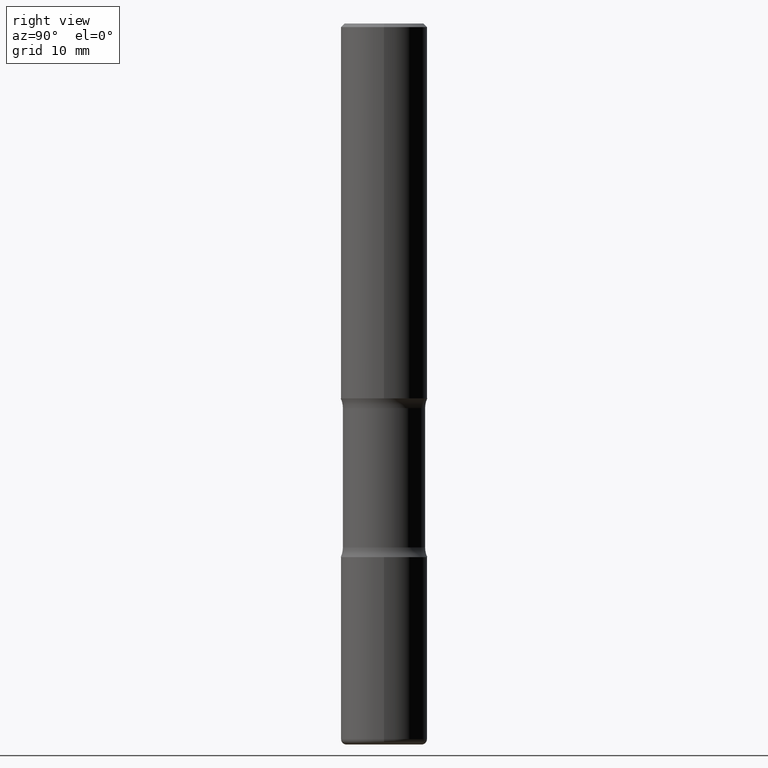
[diagram: clean part render]
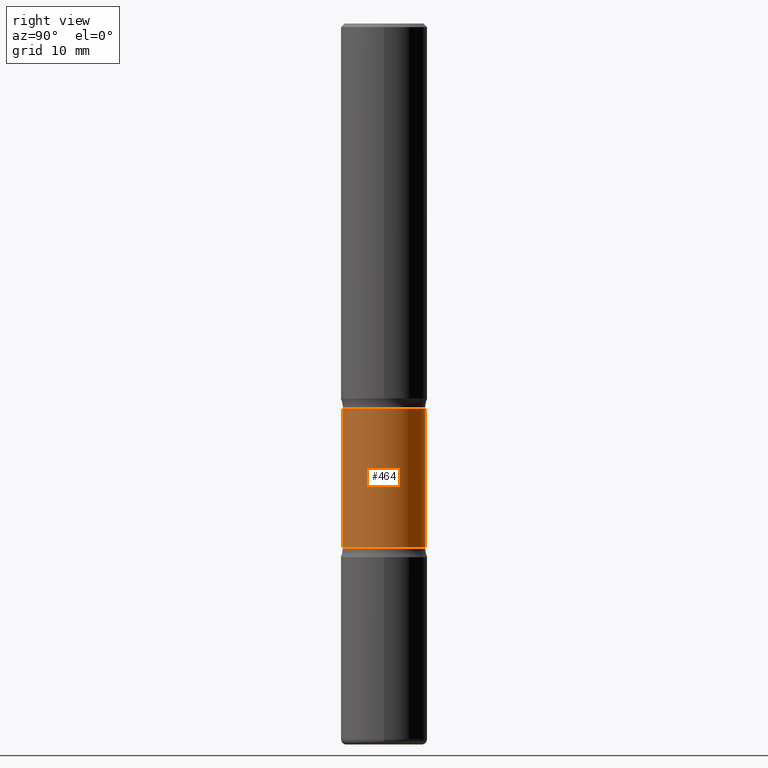
[diagram: same view with one face highlighted and labeled with its STEP entity id]
A machine part, right view. The second image highlights one B-rep face of the part: STEP entity #464.
In plain terms, the highlighted cylindrical surface (partial cylindrical patch) has radius 5.6998 mm, axis along (0, -0, -1).
Its self-contained STEP definition (entity closure, byte-faithful):
#3 = ORIENTED_EDGE ( 'NONE', *, *, #417, .T. ) ;
#9 = EDGE_CURVE ( 'NONE', #103, #114, #559, .T. ) ;
#12 = CARTESIAN_POINT ( 'NONE',  ( -1.579972688886734072E-15, -0.2244000000000073713, -2.100216601173594544 ) ) ;
#13 = ORIENTED_EDGE ( 'NONE', *, *, #16, .T. ) ;
#16 = EDGE_CURVE ( 'NONE', #379, #26, #428, .T. ) ;
#20 = ORIENTED_EDGE ( 'NONE', *, *, #371, .F. ) ;
#21 = DIRECTION ( 'NONE',  ( 2.525985086076564115E-29, -3.376177443336566513E-15, -1.000000000000000000 ) ) ;
#26 = VERTEX_POINT ( 'NONE', #512 ) ;
#36 = DIRECTION ( 'NONE',  ( 2.525985086076564115E-29, -3.376177443336566513E-15, -1.000000000000000000 ) ) ;
#52 = DIRECTION ( 'NONE',  ( 2.525985086076564115E-29, -3.376177443336566513E-15, -1.000000000000000000 ) ) ;
#77 = DIRECTION ( 'NONE',  ( 2.525985086076564115E-29, -3.376177443336566513E-15, -1.000000000000000000 ) ) ;
#96 = CARTESIAN_POINT ( 'NONE',  ( 5.070539682259229331E-29, -7.426630284172150130E-15, -2.100216601173595432 ) ) ;
#99 = DIRECTION ( 'NONE',  ( 6.982962677686265922E-15, 1.000000000000000000, -3.652203200085913934E-15 ) ) ;
#103 = VERTEX_POINT ( 'NONE', #256 ) ;
#107 = CIRCLE ( 'NONE', #516, 0.2243999999999999606 ) ;
#112 = DIRECTION ( 'NONE',  ( 6.982962677686265922E-15, 1.000000000000000000, -2.434802133390609815E-15 ) ) ;
#114 = VERTEX_POINT ( 'NONE', #291 ) ;
#215 = AXIS2_PLACEMENT_3D ( 'NONE', #96, #279, #99 ) ;
#229 = DIRECTION ( 'NONE',  ( 6.982962677686265922E-15, 1.000000000000000000, -2.434802133390609421E-15 ) ) ;
#243 = CARTESIAN_POINT ( 'NONE',  ( 9.710227154047748282E-29, -1.362793696358492956E-14, -3.937000000000000277 ) ) ;
#256 = CARTESIAN_POINT ( 'NONE',  ( 1.566976824872848494E-15, 0.2243999999999925499, -2.100216601173596320 ) ) ;
#279 = DIRECTION ( 'NONE',  ( 2.525985086076564115E-29, -3.376177443336566513E-15, -1.000000000000000000 ) ) ;
#291 = CARTESIAN_POINT ( 'NONE',  ( 1.566976824872867821E-15, 0.2243999999999899686, -2.860383398826405799 ) ) ;
#293 = CIRCLE ( 'NONE', #215, 0.2243999999999999606 ) ;
#329 = CARTESIAN_POINT ( 'NONE',  ( 6.990709676060807691E-29, -9.993088279580958225E-15, -2.860383398826405354 ) ) ;
#343 = FACE_OUTER_BOUND ( 'NONE', #356, .T. ) ;
#356 = EDGE_LOOP ( 'NONE', ( #3, #13, #20, #368 ) ) ;
#368 = ORIENTED_EDGE ( 'NONE', *, *, #9, .F. ) ;
#371 = EDGE_CURVE ( 'NONE', #114, #26, #107, .T. ) ;
#376 = VECTOR ( 'NONE', #77, 39.37007874015748143 ) ;
#379 = VERTEX_POINT ( 'NONE', #12 ) ;
#398 = CARTESIAN_POINT ( 'NONE',  ( -1.539495750699834052E-15, -0.2244000000000135608, -3.936999999999999389 ) ) ;
#411 = VECTOR ( 'NONE', #36, 39.37007874015748143 ) ;
#417 = EDGE_CURVE ( 'NONE', #103, #379, #293, .T. ) ;
#428 = LINE ( 'NONE', #398, #411 ) ;
#451 = CYLINDRICAL_SURFACE ( 'NONE', #486, 0.2243999999999999329 ) ;
#464 = ADVANCED_FACE ( 'NONE', ( #343 ), #451, .T. ) ;
#467 = CARTESIAN_POINT ( 'NONE',  ( 1.566976824872894642E-15, 0.2243999999999863049, -3.937000000000000721 ) ) ;
#486 = AXIS2_PLACEMENT_3D ( 'NONE', #243, #21, #112 ) ;
#512 = CARTESIAN_POINT ( 'NONE',  ( -1.579972688886713168E-15, -0.2244000000000099804, -2.860383398826404466 ) ) ;
#516 = AXIS2_PLACEMENT_3D ( 'NONE', #329, #52, #229 ) ;
#559 = LINE ( 'NONE', #467, #376 ) ;